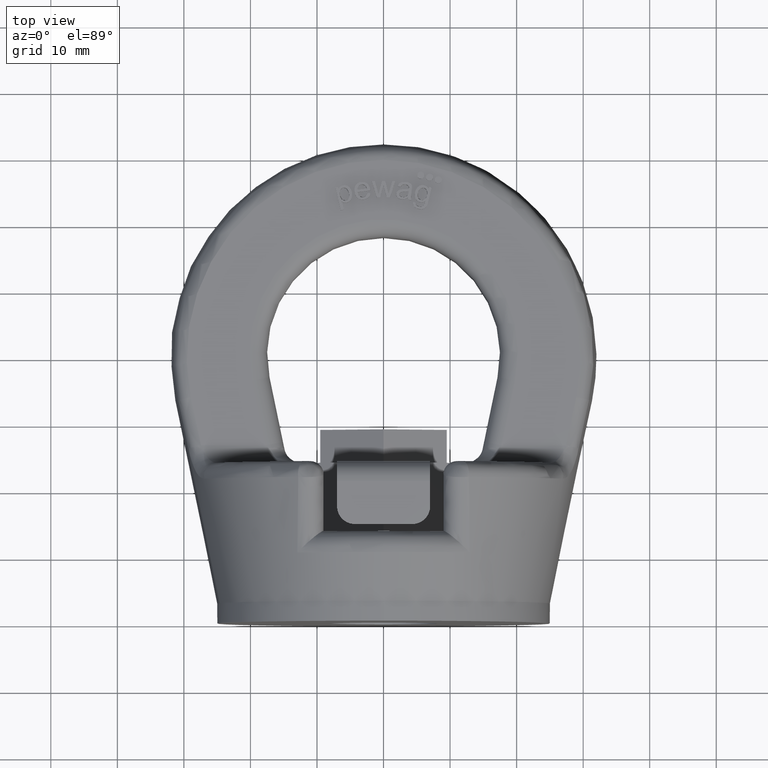
[diagram: clean part render]
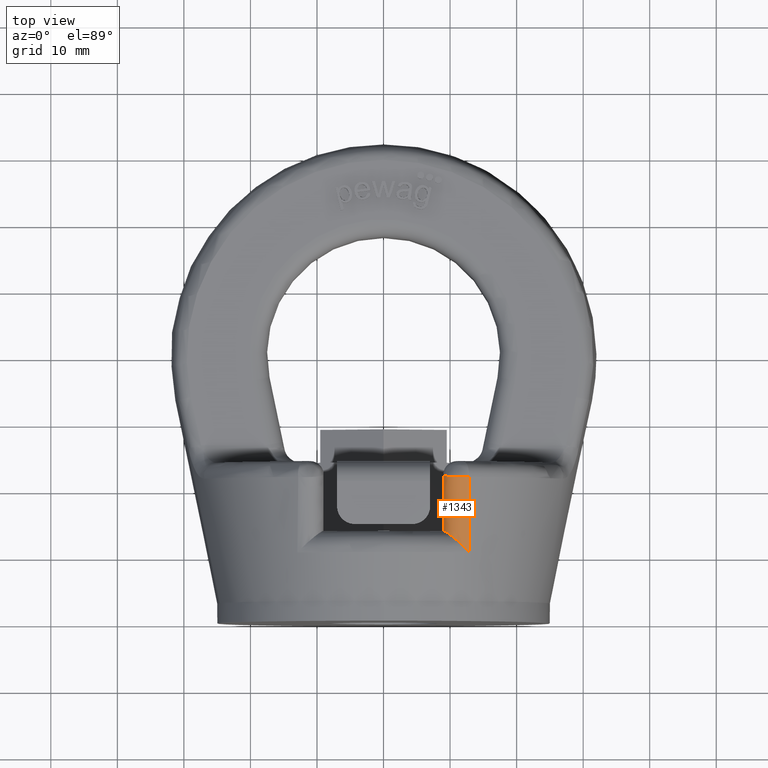
[diagram: same view with one face highlighted and labeled with its STEP entity id]
A machine part, top view. The second image highlights one B-rep face of the part: STEP entity #1343.
In plain terms, the highlighted face is a freeform B-spline surface patch.
Its self-contained STEP definition (entity closure, byte-faithful):
#1024=(
BOUNDED_SURFACE()
B_SPLINE_SURFACE(3,2,((#6910,#6911,#6912),(#6913,#6914,#6915),(#6916,#6917,
#6918),(#6919,#6920,#6921)),.UNSPECIFIED.,.F.,.F.,.F.)
B_SPLINE_SURFACE_WITH_KNOTS((4,4),(3,3),(0.,1.),(0.,1.),.UNSPECIFIED.)
GEOMETRIC_REPRESENTATION_ITEM()
RATIONAL_B_SPLINE_SURFACE(((1.,0.531563737356552,1.),(1.,0.525384705568948,
1.),(1.,0.518554206292508,1.),(1.,0.510796414156646,1.)))
REPRESENTATION_ITEM('')
SURFACE()
);
#1118=FACE_OUTER_BOUND('',#1862,.T.);
#1343=ADVANCED_FACE('',(#1118),#1024,.T.);
#1862=EDGE_LOOP('',(#2876,#2877,#2878,#2879,#2880));
#2876=ORIENTED_EDGE('',*,*,#4336,.F.);
#2877=ORIENTED_EDGE('',*,*,#4404,.T.);
#2878=ORIENTED_EDGE('',*,*,#4319,.F.);
#2879=ORIENTED_EDGE('',*,*,#4315,.F.);
#2880=ORIENTED_EDGE('',*,*,#4405,.F.);
#3930=VERTEX_POINT('',#6551);
#3931=VERTEX_POINT('',#6556);
#3934=VERTEX_POINT('',#6570);
#3950=VERTEX_POINT('',#6648);
#3951=VERTEX_POINT('',#6656);
#4315=EDGE_CURVE('',#3930,#3931,#4865,.T.);
#4319=EDGE_CURVE('',#3931,#3934,#4866,.T.);
#4336=EDGE_CURVE('',#3950,#3951,#4875,.T.);
#4404=EDGE_CURVE('',#3950,#3934,#4883,.T.);
#4405=EDGE_CURVE('',#3951,#3930,#4884,.T.);
#4865=B_SPLINE_CURVE_WITH_KNOTS('',3,(#6552,#6553,#6554,#6555),
 .UNSPECIFIED.,.F.,.F.,(4,4),(0.,1.),.UNSPECIFIED.);
#4866=B_SPLINE_CURVE_WITH_KNOTS('',3,(#6563,#6564,#6565,#6566,#6567,#6568,
#6569),.UNSPECIFIED.,.F.,.F.,(4,3,4),(0.,0.636859095643208,1.),
 .UNSPECIFIED.);
#4875=B_SPLINE_CURVE_WITH_KNOTS('',3,(#6649,#6650,#6651,#6652,#6653,#6654,
#6655),.UNSPECIFIED.,.F.,.F.,(4,3,4),(0.,0.28500580079245,1.),
 .UNSPECIFIED.);
#4883=B_SPLINE_CURVE_WITH_KNOTS('',3,(#6883,#6884,#6885,#6886,#6887,#6888,
#6889,#6890,#6891,#6892,#6893,#6894,#6895,#6896,#6897,#6898,#6899,#6900,
#6901),.UNSPECIFIED.,.F.,.F.,(4,3,3,3,3,3,4),(0.,0.154812828070866,0.319076289515695,
0.48677350897064,0.657642073894896,0.829316840274501,1.),.UNSPECIFIED.);
#4884=B_SPLINE_CURVE_WITH_KNOTS('',3,(#6902,#6903,#6904,#6905,#6906,#6907,
#6908,#6909),.UNSPECIFIED.,.F.,.F.,(4,2,2,4),(0.,0.5,0.75,1.),
 .UNSPECIFIED.);
#6551=CARTESIAN_POINT('',(9.06938438207247,13.5,22.1155294044532));
#6552=CARTESIAN_POINT('',(9.06938438207247,13.5,22.1155294044532));
#6553=CARTESIAN_POINT('',(9.02338292735447,13.5,21.9123920874867));
#6554=CARTESIAN_POINT('',(8.99999999999976,13.5,21.7028320220901));
#6555=CARTESIAN_POINT('',(9.,13.5,21.4945511939265));
#6556=CARTESIAN_POINT('',(9.,13.5,21.4945511939265));
#6563=CARTESIAN_POINT('',(9.,13.5,21.4945511939265));
#6564=CARTESIAN_POINT('',(9.,15.3035113073395,21.9206293600735));
#6565=CARTESIAN_POINT('',(9.,17.1076670883234,22.3439860355153));
#6566=CARTESIAN_POINT('',(9.,18.912356574942,22.7650460030462));
#6567=CARTESIAN_POINT('',(9.,19.941401791565,23.0051370263008));
#6568=CARTESIAN_POINT('',(9.,20.9706218792764,23.2444795609788));
#6569=CARTESIAN_POINT('',(9.,22.,23.4831392389259));
#6570=CARTESIAN_POINT('',(9.,22.,23.4831392389259));
#6648=CARTESIAN_POINT('',(12.8271153916028,21.5934007774522,25.8534815607717));
#6649=CARTESIAN_POINT('',(12.8271153916028,21.5934007774522,25.8534815607717));
#6650=CARTESIAN_POINT('',(12.8369795516159,20.5187781611358,25.5995038154908));
#6651=CARTESIAN_POINT('',(12.8470930576783,19.4443772695526,25.3445952643067));
#6652=CARTESIAN_POINT('',(12.8574755713151,18.3702242782116,25.0886591026312));
#6653=CARTESIAN_POINT('',(12.8835221219087,15.6755030177525,24.4465935665789));
#6654=CARTESIAN_POINT('',(12.9112550958807,12.9823135367428,23.79810737855));
#6655=CARTESIAN_POINT('',(12.9410458438746,10.291201036603,23.1412396065597));
#6656=CARTESIAN_POINT('',(12.9410458438746,10.291201036603,23.1412396065597));
#6883=CARTESIAN_POINT('',(12.8271153916028,21.5934007774522,25.8534815607717));
#6884=CARTESIAN_POINT('',(12.5773232906512,21.5729597334645,25.9726770764489));
#6885=CARTESIAN_POINT('',(12.3051752164051,21.5590326279848,26.0538928297325));
#6886=CARTESIAN_POINT('',(12.0302479695469,21.552626707252,26.0912488740796));
#6887=CARTESIAN_POINT('',(11.7389872771708,21.5458402103542,26.1308242434374));
#6888=CARTESIAN_POINT('',(11.4369785360535,21.5473429543006,26.1220607687378));
#6889=CARTESIAN_POINT('',(11.1485836387987,21.5570130735873,26.0656699064135));
#6890=CARTESIAN_POINT('',(10.8543270666116,21.5668797396796,26.0081328903006));
#6891=CARTESIAN_POINT('',(10.5661181059634,21.5855309751199,25.8993695888437));
#6892=CARTESIAN_POINT('',(10.3080909069262,21.611396546612,25.748546094763));
#6893=CARTESIAN_POINT('',(10.0453194599802,21.6377376985232,25.5949494664969));
#6894=CARTESIAN_POINT('',(9.80635179166353,21.6723218268664,25.3932954827003));
#6895=CARTESIAN_POINT('',(9.61182729725712,21.7121452908129,25.1611125233255));
#6896=CARTESIAN_POINT('',(9.41640574897377,21.7521524015173,24.9278588472551));
#6897=CARTESIAN_POINT('',(9.26017448047096,21.7986077789453,24.6570286721064));
#6898=CARTESIAN_POINT('',(9.15667651184115,21.8474607757571,24.3722498403215));
#6899=CARTESIAN_POINT('',(9.05375659295541,21.8960409221674,24.0890615357036));
#6900=CARTESIAN_POINT('',(9.,21.948387528912,23.7839453376494));
#6901=CARTESIAN_POINT('',(9.,22.,23.4831392389259));
#6902=CARTESIAN_POINT('',(12.9410458438746,10.291201036603,23.1412396065597));
#6903=CARTESIAN_POINT('',(12.3428631207272,10.9164946197192,23.624511002611));
#6904=CARTESIAN_POINT('',(11.6184958968359,11.5944465236368,23.9022910383546));
#6905=CARTESIAN_POINT('',(10.4840932195757,12.5600879462129,23.7619689707074));
#6906=CARTESIAN_POINT('',(10.1013961021657,12.8696687075284,23.615777402223));
#6907=CARTESIAN_POINT('',(9.44139964889376,13.3479537347876,23.0436037539043));
#6908=CARTESIAN_POINT('',(9.18049634866812,13.5,22.6061875133211));
#6909=CARTESIAN_POINT('',(9.06938438207247,13.5,22.1155294044532));
#6910=CARTESIAN_POINT('',(9.,22.2193391191916,23.5339817878234));
#6911=CARTESIAN_POINT('',(9.,21.2600167035197,27.6734646496142));
#6912=CARTESIAN_POINT('',(12.8263466300135,21.6772068224613,25.8732863995755));
#6913=CARTESIAN_POINT('',(9.,18.3988620791375,22.6485887604005));
#6914=CARTESIAN_POINT('',(9.00000000001032,17.3720336177937,26.8439042812214));
#6915=CARTESIAN_POINT('',(12.8613690699784,17.8567273395821,24.970530884988));
#6916=CARTESIAN_POINT('',(9.,14.5804508207229,21.7539835545155));
#6917=CARTESIAN_POINT('',(9.,13.5155411012168,26.0206490861487));
#6918=CARTESIAN_POINT('',(12.8995157241054,14.0383146571741,24.0560761542019));
#6919=CARTESIAN_POINT('',(9.,10.7654772115235,20.8462444408048));
#6920=CARTESIAN_POINT('',(9.,9.72656319590911,25.2125094737022));
#6921=CARTESIAN_POINT('',(12.9417974575185,10.2233449147931,23.1246748545271));